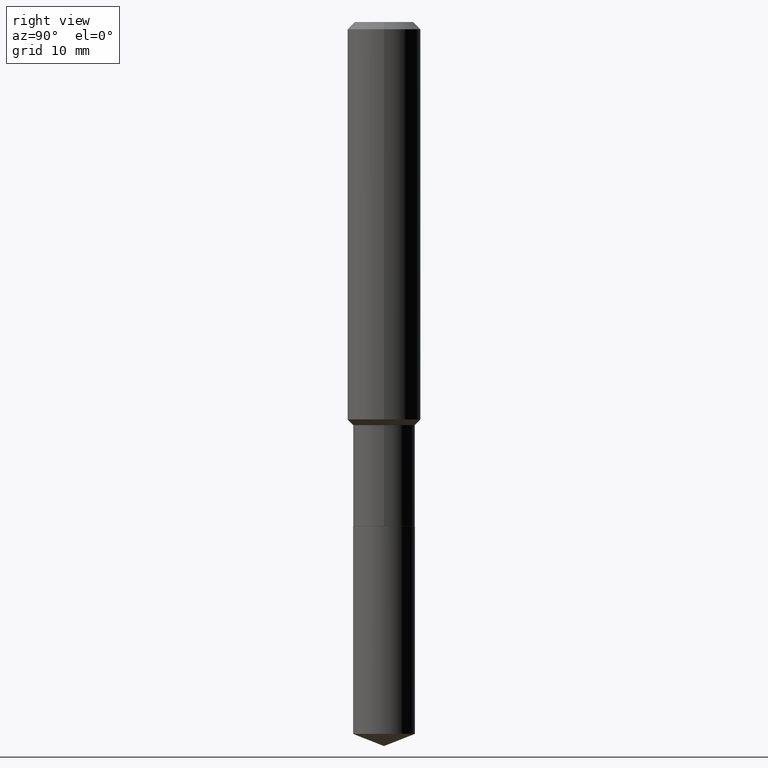
[diagram: clean part render]
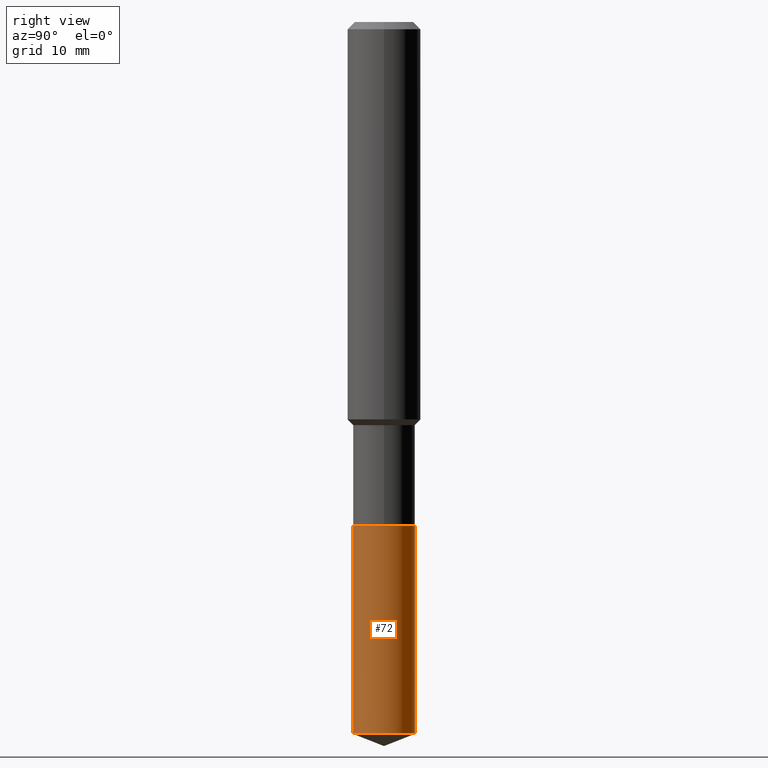
[diagram: same view with one face highlighted and labeled with its STEP entity id]
A machine part, right view. The second image highlights one B-rep face of the part: STEP entity #72.
In plain terms, the highlighted cylindrical surface (edge-blend (fillet) strip) has radius 3.3744 mm, axis along (-0, 0, 1).
Its self-contained STEP definition (entity closure, byte-faithful):
#13 = VERTEX_POINT ( 'NONE', #254 ) ;
#36 = CIRCLE ( 'NONE', #360, 0.1328499999999999959 ) ;
#55 = DIRECTION ( 'NONE',  ( -6.982962677686265133E-15, -1.000000000000000000, 4.112680457153576388E-15 ) ) ;
#58 = DIRECTION ( 'NONE',  ( -2.445165186319441374E-29, 3.491916139771790878E-15, 1.000000000000000000 ) ) ;
#69 = CIRCLE ( 'NONE', #147, 0.1328499999999999959 ) ;
#72 = ADVANCED_FACE ( 'NONE', ( #476 ), #410, .T. ) ;
#96 = DIRECTION ( 'NONE',  ( -2.445165186319441374E-29, 3.491916139771790878E-15, 1.000000000000000000 ) ) ;
#108 = LINE ( 'NONE', #302, #295 ) ;
#111 = LINE ( 'NONE', #113, #165 ) ;
#113 = CARTESIAN_POINT ( 'NONE',  ( 9.439560244573457240E-16, 0.1328499999999924186, -2.165300000000000669 ) ) ;
#115 = DIRECTION ( 'NONE',  ( -2.445165186319441374E-29, 3.491916139771791272E-15, 1.000000000000000000 ) ) ;
#116 = CARTESIAN_POINT ( 'NONE',  ( 5.295173606032675561E-29, -7.560104542997063911E-15, -2.165299999999999780 ) ) ;
#121 = ORIENTED_EDGE ( 'NONE', *, *, #247, .F. ) ;
#130 = ORIENTED_EDGE ( 'NONE', *, *, #478, .T. ) ;
#139 = CARTESIAN_POINT ( 'NONE',  ( -9.276865917305455812E-16, -0.1328500000000106540, -3.057868993314555528 ) ) ;
#147 = AXIS2_PLACEMENT_3D ( 'NONE', #206, #96, #284 ) ;
#163 = DIRECTION ( 'NONE',  ( -2.445165186319441374E-29, 3.491916139771790878E-15, 1.000000000000000000 ) ) ;
#165 = VECTOR ( 'NONE', #115, 39.37007874015748143 ) ;
#193 = EDGE_LOOP ( 'NONE', ( #130, #357, #438, #121 ) ) ;
#198 = CARTESIAN_POINT ( 'NONE',  ( 9.439560244573678122E-16, 0.1328499999999893100, -3.057868993314556416 ) ) ;
#206 = CARTESIAN_POINT ( 'NONE',  ( 7.477652234873619342E-29, -1.067688061661201906E-14, -3.057868993314555972 ) ) ;
#213 = DIRECTION ( 'NONE',  ( -6.982962677686265133E-15, -1.000000000000000000, 4.112680457153576388E-15 ) ) ;
#221 = EDGE_CURVE ( 'NONE', #392, #13, #111, .T. ) ;
#247 = EDGE_CURVE ( 'NONE', #474, #299, #108, .T. ) ;
#254 = CARTESIAN_POINT ( 'NONE',  ( 9.439560244573678122E-16, 0.1328499999999924464, -2.165300000000000669 ) ) ;
#284 = DIRECTION ( 'NONE',  ( -6.982962677686265133E-15, -1.000000000000000000, 4.112680457153576388E-15 ) ) ;
#295 = VECTOR ( 'NONE', #373, 39.37007874015748143 ) ;
#299 = VERTEX_POINT ( 'NONE', #427 ) ;
#302 = CARTESIAN_POINT ( 'NONE',  ( -9.276865917305674721E-16, -0.1328500000000075454, -2.165299999999999336 ) ) ;
#317 = AXIS2_PLACEMENT_3D ( 'NONE', #399, #58, #213 ) ;
#357 = ORIENTED_EDGE ( 'NONE', *, *, #221, .T. ) ;
#360 = AXIS2_PLACEMENT_3D ( 'NONE', #116, #163, #55 ) ;
#373 = DIRECTION ( 'NONE',  ( -2.445165186319441374E-29, 3.491916139771791272E-15, 1.000000000000000000 ) ) ;
#385 = EDGE_CURVE ( 'NONE', #299, #13, #36, .T. ) ;
#392 = VERTEX_POINT ( 'NONE', #198 ) ;
#399 = CARTESIAN_POINT ( 'NONE',  ( 5.295173606032675561E-29, -7.560104542997063911E-15, -2.165299999999999780 ) ) ;
#410 = CYLINDRICAL_SURFACE ( 'NONE', #317, 0.1328499999999999959 ) ;
#427 = CARTESIAN_POINT ( 'NONE',  ( -9.276865917305674721E-16, -0.1328500000000075454, -2.165299999999999336 ) ) ;
#438 = ORIENTED_EDGE ( 'NONE', *, *, #385, .F. ) ;
#474 = VERTEX_POINT ( 'NONE', #139 ) ;
#476 = FACE_OUTER_BOUND ( 'NONE', #193, .T. ) ;
#478 = EDGE_CURVE ( 'NONE', #474, #392, #69, .T. ) ;